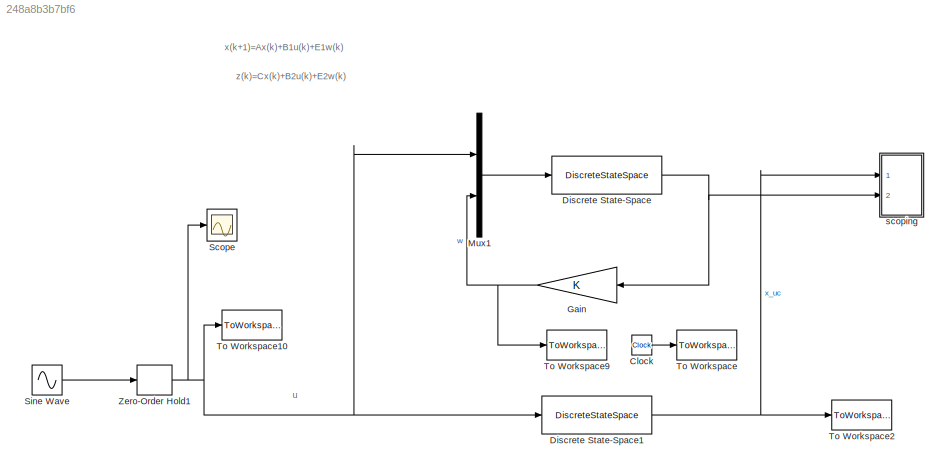
MODEL slx_248a8b3b7bf6
KIND model
BLOCK [Clock] Clock
BLOCK [DiscreteStateSpace] Discrete State-Space
  A = A
  B = [B1 E1]
  C = C
  D = zeros(size(C,1),size([B1 E1],2))
  SampleTime = T_s
BLOCK [DiscreteStateSpace] Discrete State-Space1
  A = A
  B = B1
  C = C
  D = zeros(size(C,1),size([B1],2))
  SampleTime = T_s
BLOCK [Gain] Gain
  Gain = K
  Multiplication = Matrix(K*u) (u vector)
  OutDataTypeStr = Inherit: Inherit via internal rule
  ParamDataTypeStr = Inherit: Inherit via internal rule
  SaturateOnIntegerOverflow = off
BLOCK [Mux] Mux1
  DisplayOption = bar
  Inputs = 2
  Ports = [2, 1]
BLOCK [Scope] Scope
  DataFormat = StructureWithTime
  Floating = off
  LimitDataPoints = off
  NumInputPorts = 1
  Ports = [1]
  SampleTime = 0
  SaveName = ScopeData1
  ShowLegends = off
BLOCK [Sin] Sine Wave
  Ports = [0, 1]
  SampleTime = 0
BLOCK [ToWorkspace] To Workspace
  MaxDataPoints = inf
  Ports = [1]
  SampleTime = -1
  VariableName = t
BLOCK [ToWorkspace] To Workspace10
  MaxDataPoints = inf
  Ports = [1]
  SampleTime = -1
  VariableName = x_r
BLOCK [ToWorkspace] To Workspace2
  MaxDataPoints = inf
  Ports = [1]
  SampleTime = -1
  SaveFormat = Structure With Time
  VariableName = x_unc
BLOCK [ToWorkspace] To Workspace9
  MaxDataPoints = inf
  Ports = [1]
  SampleTime = -1
  VariableName = u
BLOCK [ZeroOrderHold] Zero-Order Hold1
  SampleTime = T_s
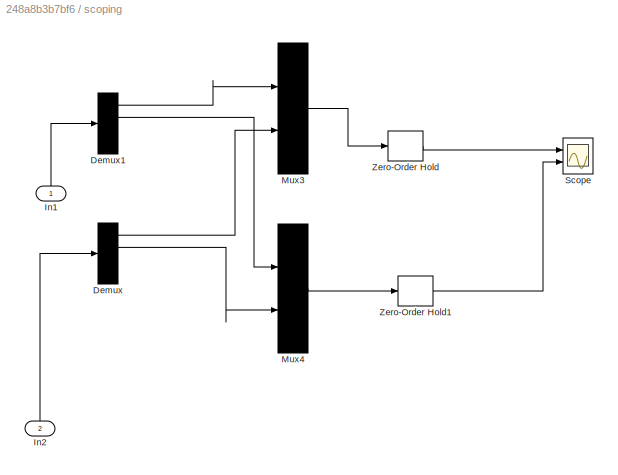
BLOCK [SubSystem] scoping
  FunctionWithSeparateData = off
  MaskHideContents = off
  MinAlgLoopOccurrences = off
  Opaque = off
  Ports = [2]
  PropExecContextOutsideSubsystem = off
  RTWSystemCode = Auto
  RequestExecContextInheritance = off
BLOCK [Demux] scoping/Demux
  DisplayOption = bar
  Ports = [1, 4]
BLOCK [Demux] scoping/Demux1
  DisplayOption = bar
  Ports = [1, 4]
BLOCK [Inport] scoping/In1
  IconDisplay = Port number
BLOCK [Inport] scoping/In2
  IconDisplay = Port number
  Port = 2
BLOCK [Mux] scoping/Mux3
  DisplayOption = bar
  Inputs = 2
  Ports = [2, 1]
BLOCK [Mux] scoping/Mux4
  DisplayOption = bar
  Inputs = 2
  Ports = [2, 1]
BLOCK [Scope] scoping/Scope
  DataFormat = StructureWithTime
  Floating = off
  LegendLocations = 0.74277     0.90866      0.1792    0.044944\n0.74277     0.42551     0.18672    0.044944
  LimitDataPoints = off
  NumInputPorts = 2
  Ports = [2]
  SampleTime = 0.001
  ShowLegends = on
  TickLabels = on
  YMax = 5~5
  YMin = -5~-5
  ZoomMode = xonly
BLOCK [ZeroOrderHold] scoping/Zero-Order Hold
  SampleTime = 0.001
BLOCK [ZeroOrderHold] scoping/Zero-Order Hold1
  SampleTime = 0.001
ANNOTATION (root): u
ANNOTATION (root): x(k+1)=Ax(k)+B1u(k)+E1w(k)
ANNOTATION (root): z(k)=Cx(k)+B2u(k)+E2w(k)
LINE Clock:1 -> To Workspace:1
NET Discrete State-Space1:1 -> To Workspace2:1, scoping:1
NET Discrete State-Space:1 -> Gain:1, scoping:2
NET Gain:1 -> Mux1:2, To Workspace9:1
LINE Mux1:1 -> Discrete State-Space:1
LINE Sine Wave:1 -> Zero-Order Hold1:1
NET Zero-Order Hold1:1 -> Discrete State-Space1:1, Mux1:1, Scope:1, To Workspace10:1
LINE scoping/Demux1:1 -> scoping/Mux3:1
LINE scoping/Demux1:2 -> scoping/Mux4:1
LINE scoping/Demux:1 -> scoping/Mux3:2
LINE scoping/Demux:2 -> scoping/Mux4:2
LINE scoping/In1:1 -> scoping/Demux1:1
LINE scoping/In2:1 -> scoping/Demux:1
LINE scoping/Mux3:1 -> scoping/Zero-Order Hold:1
LINE scoping/Mux4:1 -> scoping/Zero-Order Hold1:1
LINE scoping/Zero-Order Hold1:1 -> scoping/Scope:2
LINE scoping/Zero-Order Hold:1 -> scoping/Scope:1
note: NET lines group one-source signal fan-out (src -> all destinations, sorted); 1:1 wires keep LINE
